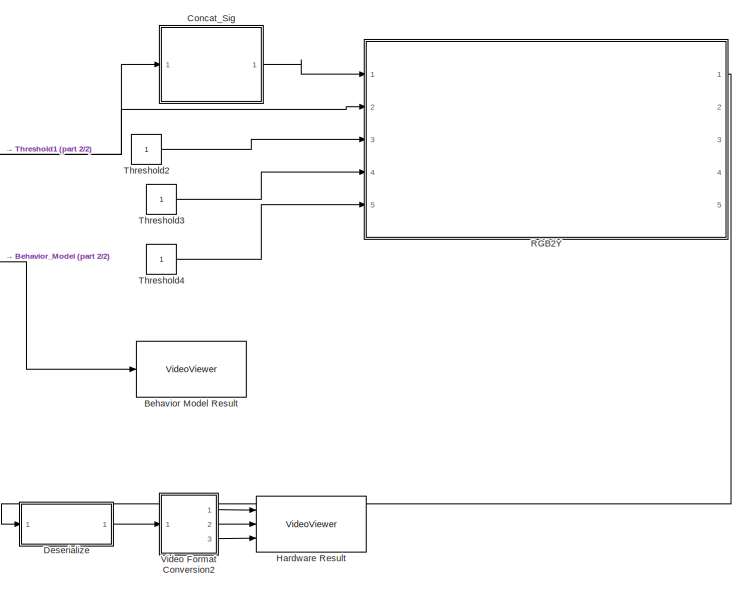
[diagram: root canvas - part 1/2, middle right region]
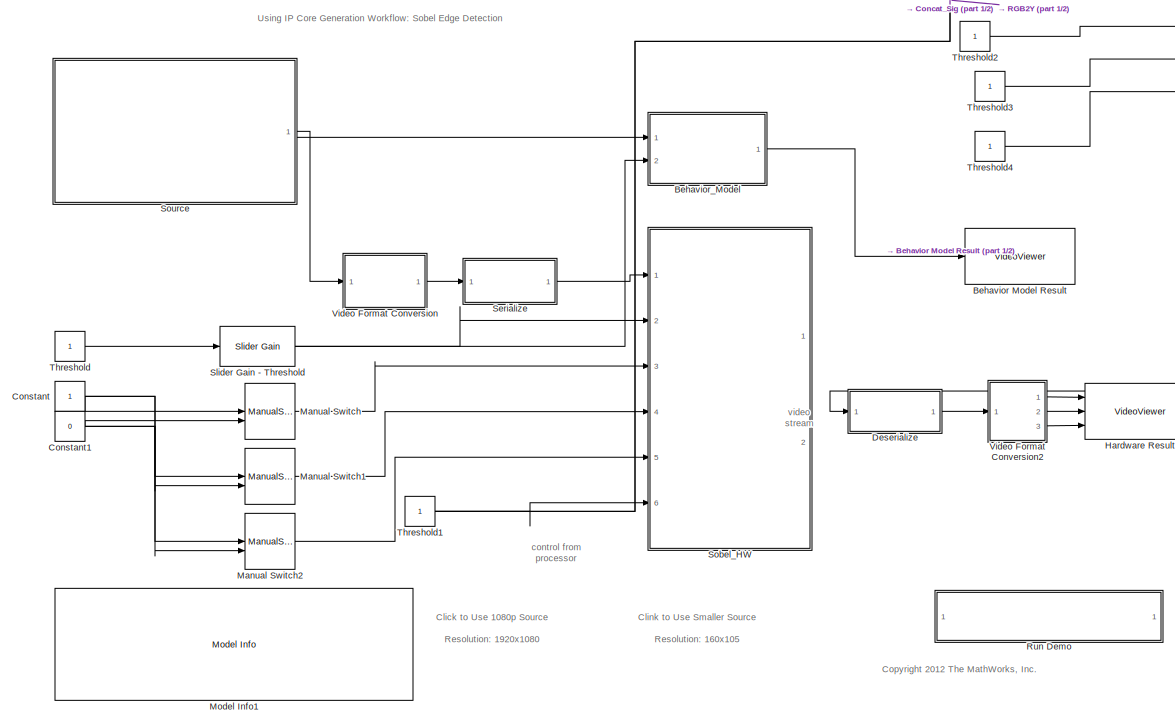
[diagram: root canvas - part 2/2, most of the canvas]
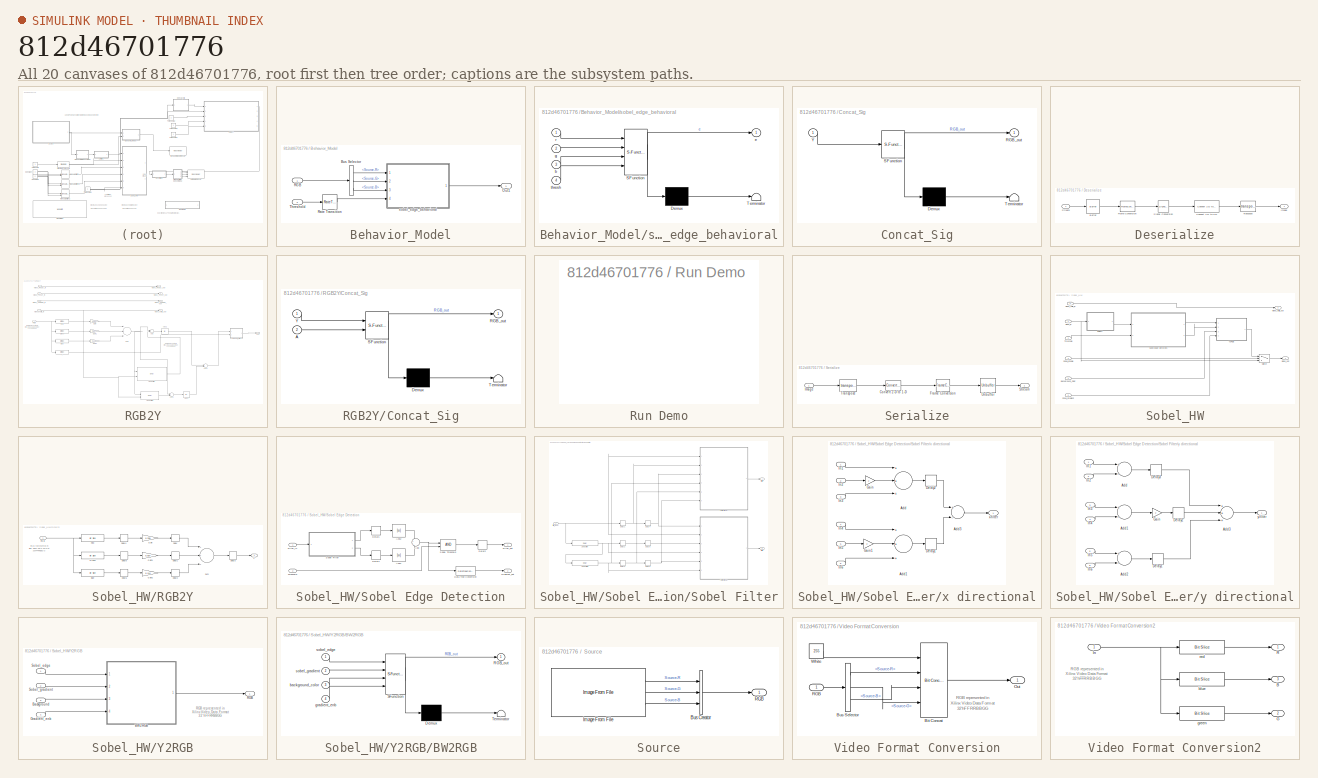
[diagram: thumbnail index - all 20 canvases of the model, root first then tree order]
MODEL slx_812d46701776
KIND model
CONFIG AbsTol = auto
CONFIG FixedStep = auto
CONFIG MaxStep = auto
CONFIG MinStep = auto
CONFIG PreLoadFcn = R=105; \nC=160;\nTs = 1/10;\nimage_sample_time = R*C/10;\n\n
CONFIG RelTol = 1e-3
CONFIG SampleTimeConstraint = Unconstrained
CONFIG Solver = VariableStepAuto
CONFIG SolverMode = Auto
CONFIG SolverName = VariableStepAuto
CONFIG StartTime = 0.0
CONFIG StopTime = 10.0
BLOCK [VideoViewer] Behavior Model Result
  FigPos = [941 500.4 363.2 159.2]
  Ports = [1]
  ScopeSpecificationString = vipscopes.VideoViewerScopeCfg('CurrentConfiguration', extmgr.ConfigurationSet(extmgr.Configuration('Core','General UI',true),extmgr.Configuration('Core','Source UI',true),extmgr.Configuration('Sources','WiredSimulink',true),extmgr.Configuration('Visuals','Video',true,'AxesProperties',struct('Color',[1 1 1],'XColor',[0 0 0],'YColor',[0 0 0],'ZColor',[0 0 0],'XGrid','off','YGrid','off','ZGrid','off'...<+612ch>
  colormapValue = gray(256)
BLOCK [SubSystem] Behavior_Model
  Ports = [2, 1]
  RequestExecContextInheritance = off
  Variant = off
BLOCK [BusSelector] Behavior_Model/Bus Selector
  OutputSignals = Source-R,Source-G,Source-B
  Ports = [1, 3]
BLOCK [Outport] Behavior_Model/Out1
  IconDisplay = Port number
BLOCK [Inport] Behavior_Model/RGB
  IconDisplay = Port number
BLOCK [RateTransition] Behavior_Model/Rate Transition
BLOCK [Inport] Behavior_Model/Threshold
  IconDisplay = Port number
  Port = 2
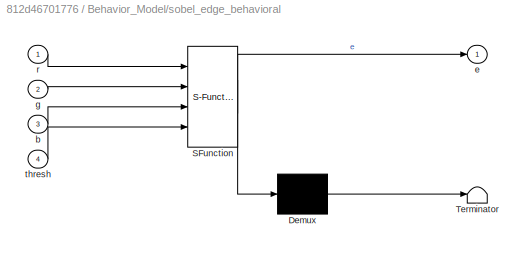
BLOCK [SubSystem] Behavior_Model/sobel_edge_behavioral
  ErrorFcn = Stateflow.Translate.translate
  PermitHierarchicalResolution = ExplicitOnly
  Ports = [4, 1]
  RequestExecContextInheritance = off
  SFBlockType = MATLAB Function
  TreatAsAtomicUnit = on
  Variant = off
BLOCK [Demux] Behavior_Model/sobel_edge_behavioral/ Demux 
  Outputs = 1
  Ports = [1, 1]
BLOCK [S-Function] Behavior_Model/sobel_edge_behavioral/ SFunction 
  EnableBusSupport = on
  FunctionName = sf_sfun
  PortCounts = [4 2]
  Ports = [4, 2]
  SFunctionDeploymentMode = off
  Tag = Stateflow S-Function gm_CSC 2
BLOCK [Terminator] Behavior_Model/sobel_edge_behavioral/ Terminator 
BLOCK [Inport] Behavior_Model/sobel_edge_behavioral/b
  IconDisplay = Port number
  Port = 3
BLOCK [Outport] Behavior_Model/sobel_edge_behavioral/e
  IconDisplay = Port number
BLOCK [Inport] Behavior_Model/sobel_edge_behavioral/g
  IconDisplay = Port number
  Port = 2
BLOCK [Inport] Behavior_Model/sobel_edge_behavioral/r
  IconDisplay = Port number
BLOCK [Inport] Behavior_Model/sobel_edge_behavioral/thresh
  IconDisplay = Port number
  Port = 4
BLOCK [SubSystem] Concat_Sig
  ErrorFcn = Stateflow.Translate.translate
  PermitHierarchicalResolution = ExplicitOnly
  Ports = [1, 1]
  RequestExecContextInheritance = off
  SFBlockType = MATLAB Function
  TreatAsAtomicUnit = on
  Variant = off
BLOCK [Demux] Concat_Sig/ Demux 
  Outputs = 1
  Ports = [1, 1]
BLOCK [S-Function] Concat_Sig/ SFunction 
  EnableBusSupport = on
  FunctionName = sf_sfun
  PortCounts = [1 2]
  Ports = [1, 2]
  SFunctionDeploymentMode = off
  Tag = Stateflow S-Function gm_CSC 4
BLOCK [Terminator] Concat_Sig/ Terminator 
BLOCK [Outport] Concat_Sig/RGB_out
  IconDisplay = Port number
BLOCK [Inport] Concat_Sig/Y
  IconDisplay = Port number
BLOCK [Constant] Constant
  OutDataTypeStr = boolean
  SampleTime = Ts
BLOCK [Constant] Constant1
  OutDataTypeStr = boolean
  SampleTime = Ts
  Value = 0
BLOCK [SubSystem] Deserialize
  Ports = [1, 1]
  RequestExecContextInheritance = off
  Variant = off
BLOCK [Buffer] Deserialize/Buffer
  N = R*C
  TreatMby1Signals = One channel
BLOCK [Reference] Deserialize/Convert 1-D to 2-D  REF=dspsigattribs/Convert 1-D to 2-D
  Ports = [1, 1]
  SourceBlock = dspsigattribs/Convert 1-D to 2-D
  SourceType = Convert 1-D to 2-D
BLOCK [FrameConversion] Deserialize/Frame Conversion
  InheritSamplingMode = off
  OutFrame = Sample-based
  Ports = [1, 1]
BLOCK [Outport] Deserialize/Image
  IconDisplay = Port number
BLOCK [SignalConversion] Deserialize/Signal Conversion
  ConversionOutput = Contiguous copy
  OverrideOpt = off
BLOCK [Inport] Deserialize/Stream
  IconDisplay = Port number
BLOCK [Math] Deserialize/Transpose
  Operator = transpose
  Ports = [1, 1]
BLOCK [VideoViewer] Hardware Result
  FigPos = [1151.4 744.4 360.8 160]
  Ports = [3]
  ScopeSpecificationString = vipscopes.VideoViewerScopeCfg('CurrentConfiguration', extmgr.ConfigurationSet(extmgr.Configuration('Core','General UI',true),extmgr.Configuration('Core','Source UI',true),extmgr.Configuration('Sources','WiredSimulink',true),extmgr.Configuration('Visuals','Video',true,'AxesProperties',struct('Color',[1 1 1],'XColor',[0 0 0],'YColor',[0 0 0],'ZColor',[0 0 0],'XGrid','off','YGrid','off','ZGrid','off'...<+613ch>
  colormapValue = gray(256)
  imagePorts = separate color signals
BLOCK [ManualSwitch] Manual Switch
BLOCK [ManualSwitch] Manual Switch1
BLOCK [ManualSwitch] Manual Switch2
  CurrentSetting = 0
BLOCK [Reference] Model Info1  REF=simulink/Model-Wide
Utilities/Model Info
  Ports = []
  SourceBlock = simulink/Model-Wide\nUtilities/Model Info
  SourceType = CMBlock
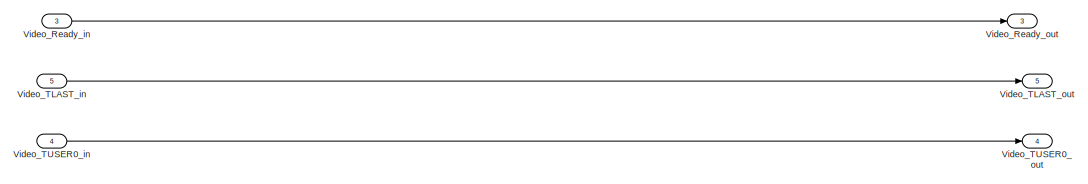
[diagram: RGB2Y - part 1/3, top left region]
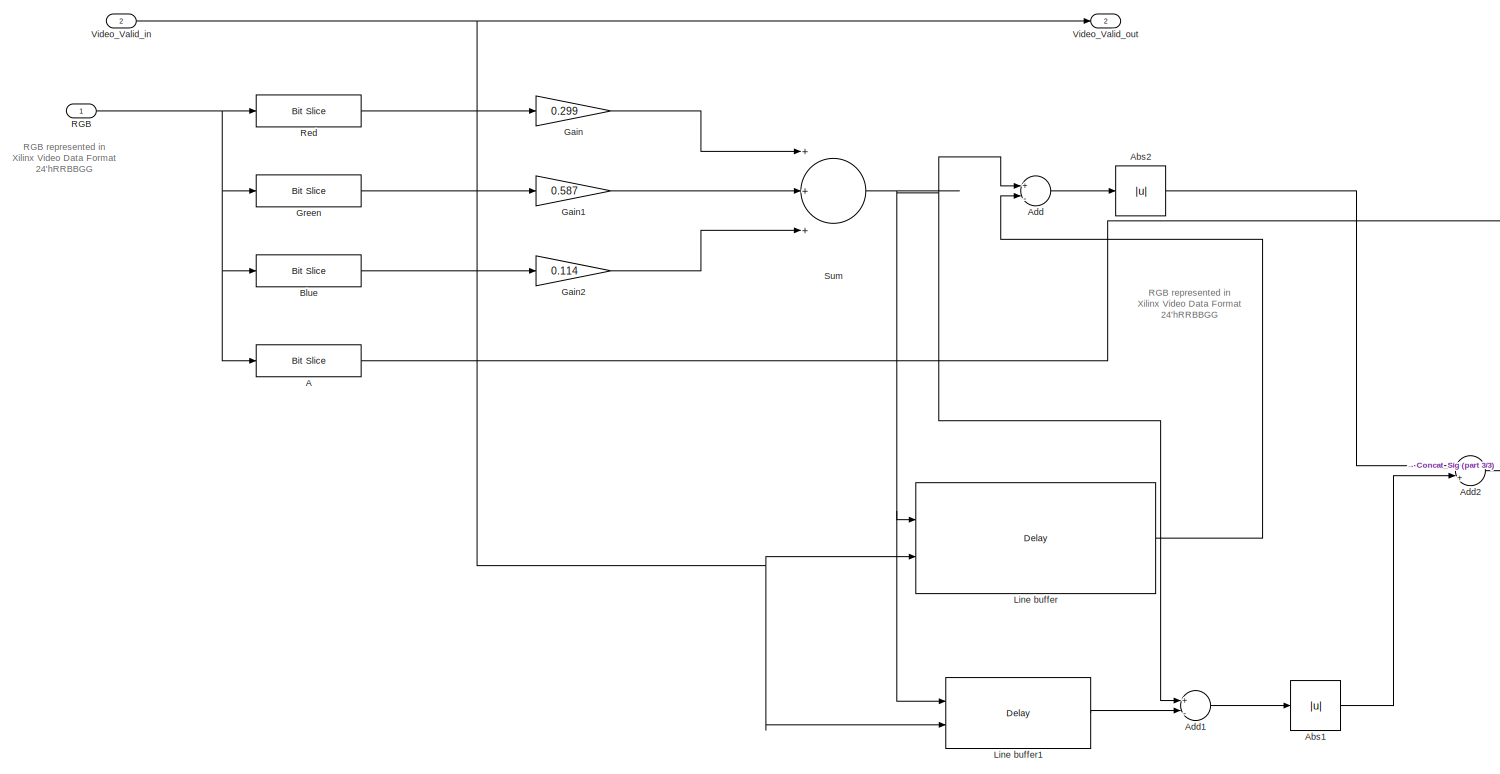
[diagram: RGB2Y - part 2/3, most of the canvas]
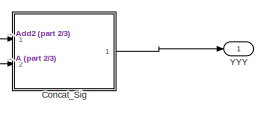
[diagram: RGB2Y - part 3/3, middle right region]
BLOCK [SubSystem] RGB2Y
  Ports = [5, 5]
  RequestExecContextInheritance = off
  TreatAsAtomicUnit = on
  Variant = off
BLOCK [Reference] RGB2Y/A  REF=hdlsllib/HDL Operations/Bit Slice
  Ports = [1, 1]
  SourceBlock = hdlsllib/HDL Operations/Bit Slice
  SourceType = Bit Slice
BLOCK [Abs] RGB2Y/Abs1
  SaturateOnIntegerOverflow = off
BLOCK [Abs] RGB2Y/Abs2
  SaturateOnIntegerOverflow = off
BLOCK [Sum] RGB2Y/Add
  InputSameDT = off
  Inputs = +|-
  OutDataTypeStr = fixdt(1,12,0)
  Ports = [2, 1]
  SaturateOnIntegerOverflow = off
BLOCK [Sum] RGB2Y/Add1
  InputSameDT = off
  Inputs = +|-
  OutDataTypeStr = fixdt(1,12,0)
  Ports = [2, 1]
  SaturateOnIntegerOverflow = off
BLOCK [Sum] RGB2Y/Add2
  InputSameDT = off
  Inputs = +|+
  OutDataTypeStr = fixdt(1,12,0)
  Ports = [2, 1]
  SaturateOnIntegerOverflow = off
BLOCK [Reference] RGB2Y/Blue  REF=hdlsllib/HDL Operations/Bit Slice
  Ports = [1, 1]
  SourceBlock = hdlsllib/HDL Operations/Bit Slice
  SourceType = Bit Slice
BLOCK [SubSystem] RGB2Y/Concat_Sig
  ErrorFcn = Stateflow.Translate.translate
  PermitHierarchicalResolution = ExplicitOnly
  Ports = [2, 1]
  RequestExecContextInheritance = off
  SFBlockType = MATLAB Function
  TreatAsAtomicUnit = on
  Variant = off
BLOCK [Demux] RGB2Y/Concat_Sig/ Demux 
  Outputs = 1
  Ports = [1, 1]
BLOCK [S-Function] RGB2Y/Concat_Sig/ SFunction 
  EnableBusSupport = on
  FunctionName = sf_sfun
  PortCounts = [2 2]
  Ports = [2, 2]
  SFunctionDeploymentMode = off
  Tag = Stateflow S-Function gm_CSC 1
BLOCK [Terminator] RGB2Y/Concat_Sig/ Terminator 
BLOCK [Inport] RGB2Y/Concat_Sig/A
  IconDisplay = Port number
  Port = 2
BLOCK [Outport] RGB2Y/Concat_Sig/RGB_out
  IconDisplay = Port number
BLOCK [Inport] RGB2Y/Concat_Sig/Y
  IconDisplay = Port number
BLOCK [Gain] RGB2Y/Gain
  Gain = 0.299
  ParamDataTypeStr = Inherit: Inherit via internal rule
  SaturateOnIntegerOverflow = off
BLOCK [Gain] RGB2Y/Gain1
  Gain = 0.587
  ParamDataTypeStr = Inherit: Inherit via internal rule
  SaturateOnIntegerOverflow = off
BLOCK [Gain] RGB2Y/Gain2
  Gain = 0.114
  ParamDataTypeStr = Inherit: Inherit via internal rule
  SaturateOnIntegerOverflow = off
BLOCK [Reference] RGB2Y/Green  REF=hdlsllib/HDL Operations/Bit Slice
  Ports = [1, 1]
  SourceBlock = hdlsllib/HDL Operations/Bit Slice
  SourceType = Bit Slice
BLOCK [Delay] RGB2Y/Line buffer
  DelayLength = 640
  InitialCondition = 0
  InputPortMap = u0,e6
  Ports = [2, 1]
  ShowEnablePort = on
BLOCK [Delay] RGB2Y/Line buffer1
  DelayLength = 1
  InitialCondition = 0
  InputPortMap = u0,e6
  Ports = [2, 1]
  ShowEnablePort = on
BLOCK [Inport] RGB2Y/RGB
  IconDisplay = Port number
BLOCK [Reference] RGB2Y/Red  REF=hdlsllib/HDL Operations/Bit Slice
  Ports = [1, 1]
  SourceBlock = hdlsllib/HDL Operations/Bit Slice
  SourceType = Bit Slice
BLOCK [Sum] RGB2Y/Sum
  AccumDataTypeStr = Inherit: Same as first input
  InputSameDT = off
  Inputs = +++
  OutDataTypeStr = fixdt(1, 9, 0)
  Ports = [3, 1]
  SaturateOnIntegerOverflow = off
BLOCK [Inport] RGB2Y/Video_Ready_in
  IconDisplay = Port number
  Port = 3
BLOCK [Outport] RGB2Y/Video_Ready_out
  IconDisplay = Port number
  Port = 3
BLOCK [Inport] RGB2Y/Video_TLAST_in
  IconDisplay = Port number
  Port = 5
BLOCK [Outport] RGB2Y/Video_TLAST_out
  IconDisplay = Port number
  Port = 5
BLOCK [Inport] RGB2Y/Video_TUSER0_in
  IconDisplay = Port number
  Port = 4
BLOCK [Outport] RGB2Y/Video_TUSER0_out
  IconDisplay = Port number
  Port = 4
BLOCK [Inport] RGB2Y/Video_Valid_in
  IconDisplay = Port number
  Port = 2
BLOCK [Outport] RGB2Y/Video_Valid_out
  IconDisplay = Port number
  Port = 2
BLOCK [Outport] RGB2Y/YYY
  IconDisplay = Port number
BLOCK [SubSystem] Run Demo
  OpenFcn = hdladvisor([bdroot, '/Sobel_HW'])
  Ports = []
  RequestExecContextInheritance = off
  Variant = off
BLOCK [SubSystem] Serialize
  Ports = [1, 1]
  RequestExecContextInheritance = off
  Variant = off
BLOCK [Reference] Serialize/Convert 2-D to 1-D  REF=dspsigattribs/Convert 2-D to 1-D
  Ports = [1, 1]
  SourceBlock = dspsigattribs/Convert 2-D to 1-D
  SourceType = Convert 2-D to 1-D
BLOCK [FrameConversion] Serialize/Frame Conversion
  InheritSamplingMode = off
  Ports = [1, 1]
BLOCK [Inport] Serialize/Image
  IconDisplay = Port number
BLOCK [Outport] Serialize/Stream
  IconDisplay = Port number
BLOCK [Math] Serialize/Transpose
  Operator = transpose
  Ports = [1, 1]
BLOCK [Unbuffer] Serialize/Unbuffer
  Ports = [1, 1]
  SampleBasedProcessing = Same as frame based
BLOCK [Reference] Slider Gain - Threshold  REF=simulink/Math
Operations/Slider
Gain
  Ports = [1, 1]
  SourceBlock = simulink/Math\nOperations/Slider\nGain
  SourceType = Slider Gain
BLOCK [SubSystem] Sobel_HW
  Ports = [6, 2]
  RequestExecContextInheritance = off
  TreatAsAtomicUnit = on
  Variant = off
BLOCK [Inport] Sobel_HW/Background_Color
  IconDisplay = Port number
  Port = 4
BLOCK [SubSystem] Sobel_HW/RGB2Y
  Ports = [1, 1]
  RequestExecContextInheritance = off
  Variant = off
BLOCK [Reference] Sobel_HW/RGB2Y/Blue  REF=hdlsllib/HDL Operations/Bit Slice
  Ports = [1, 1]
  SourceBlock = hdlsllib/HDL Operations/Bit Slice
  SourceType = Bit Slice
BLOCK [Delay] Sobel_HW/RGB2Y/Delay
  DelayLength = 1
  InitialCondition = 0
  InputPortMap = u0
  Ports = [1, 1]
BLOCK [Delay] Sobel_HW/RGB2Y/Delay1
  DelayLength = 1
  InitialCondition = 0
  InputPortMap = u0
  Ports = [1, 1]
BLOCK [Delay] Sobel_HW/RGB2Y/Delay2
  DelayLength = 1
  InitialCondition = 0
  InputPortMap = u0
  Ports = [1, 1]
BLOCK [Delay] Sobel_HW/RGB2Y/Delay3
  DelayLength = 1
  InitialCondition = 0
  InputPortMap = u0
  Ports = [1, 1]
BLOCK [Delay] Sobel_HW/RGB2Y/Delay4
  DelayLength = 1
  InitialCondition = 0
  InputPortMap = u0
  Ports = [1, 1]
BLOCK [Delay] Sobel_HW/RGB2Y/Delay5
  DelayLength = 1
  InitialCondition = 0
  InputPortMap = u0
  Ports = [1, 1]
BLOCK [Delay] Sobel_HW/RGB2Y/Delay6
  DelayLength = 1
  InitialCondition = 0
  InputPortMap = u0
  Ports = [1, 1]
BLOCK [Gain] Sobel_HW/RGB2Y/Gain
  Gain = 0.299
  ParamDataTypeStr = Inherit: Inherit via internal rule
  SaturateOnIntegerOverflow = off
BLOCK [Gain] Sobel_HW/RGB2Y/Gain1
  Gain = 0.587
  ParamDataTypeStr = Inherit: Inherit via internal rule
  SaturateOnIntegerOverflow = off
BLOCK [Gain] Sobel_HW/RGB2Y/Gain2
  Gain = 0.114
  ParamDataTypeStr = Inherit: Inherit via internal rule
  SaturateOnIntegerOverflow = off
BLOCK [Reference] Sobel_HW/RGB2Y/Green  REF=hdlsllib/HDL Operations/Bit Slice
  Ports = [1, 1]
  SourceBlock = hdlsllib/HDL Operations/Bit Slice
  SourceType = Bit Slice
BLOCK [Inport] Sobel_HW/RGB2Y/RGB
  IconDisplay = Port number
BLOCK [Reference] Sobel_HW/RGB2Y/Red  REF=hdlsllib/HDL Operations/Bit Slice
  Ports = [1, 1]
  SourceBlock = hdlsllib/HDL Operations/Bit Slice
  SourceType = Bit Slice
BLOCK [Sum] Sobel_HW/RGB2Y/Sum
  AccumDataTypeStr = Inherit: Same as first input
  InputSameDT = off
  Inputs = +++
  OutDataTypeStr = fixdt(1, 9, 0)
  Ports = [3, 1]
  SaturateOnIntegerOverflow = off
BLOCK [Outport] Sobel_HW/RGB2Y/Y
  IconDisplay = Port number
BLOCK [Inport] Sobel_HW/Show_Gradient
  IconDisplay = Port number
  Port = 5
BLOCK [SubSystem] Sobel_HW/Sobel Edge Detection
  Ports = [2, 2]
  RequestExecContextInheritance = off
  Variant = off
BLOCK [Abs] Sobel_HW/Sobel Edge Detection/Abs1
  SaturateOnIntegerOverflow = off
BLOCK [Abs] Sobel_HW/Sobel Edge Detection/Abs2
  SaturateOnIntegerOverflow = off
BLOCK [Sum] Sobel_HW/Sobel Edge Detection/Add
  IconShape = round
  InputSameDT = off
  Inputs = +|+
  OutDataTypeStr = fixdt(1,12,0)
  Ports = [2, 1]
  SaturateOnIntegerOverflow = off
BLOCK [DataTypeConversion] Sobel_HW/Sobel Edge Detection/Data Type Conversion
  OutDataTypeStr = uint8
  RndMeth = Floor
BLOCK [Delay] Sobel_HW/Sobel Edge Detection/Delay1
  DelayLength = 1
  InitialCondition = 0
  InputPortMap = u0
  Ports = [1, 1]
BLOCK [Delay] Sobel_HW/Sobel Edge Detection/Delay2
  DelayLength = 1
  InitialCondition = 0
  InputPortMap = u0
  Ports = [1, 1]
BLOCK [Delay] Sobel_HW/Sobel Edge Detection/Delay4
  DelayLength = 1
  InitialCondition = 0
  InputPortMap = u0
  Ports = [1, 1]
BLOCK [Inport] Sobel_HW/Sobel Edge Detection/Filter_in 
  IconDisplay = Port number and signal name
BLOCK [Outport] Sobel_HW/Sobel Edge Detection/Filter_out
  IconDisplay = Port number
BLOCK [Outport] Sobel_HW/Sobel Edge Detection/Gradient_out
  IconDisplay = Port number
  Port = 2
BLOCK [SubSystem] Sobel_HW/Sobel Edge Detection/Sobel Filter
  Ports = [1, 2]
  RequestExecContextInheritance = off
  Variant = off
BLOCK [Delay] Sobel_HW/Sobel Edge Detection/Sobel Filter/Delay1
  DelayLength = 1
  InitialCondition = 0
  InputPortMap = u0
  Ports = [1, 1]
BLOCK [Delay] Sobel_HW/Sobel Edge Detection/Sobel Filter/Delay2
  DelayLength = 1
  InitialCondition = 0
  InputPortMap = u0
  Ports = [1, 1]
BLOCK [Delay] Sobel_HW/Sobel Edge Detection/Sobel Filter/Delay3
  DelayLength = 1
  InitialCondition = 0
  InputPortMap = u0
  Ports = [1, 1]
BLOCK [Delay] Sobel_HW/Sobel Edge Detection/Sobel Filter/Delay4
  DelayLength = 1
  InitialCondition = 0
  InputPortMap = u0
  Ports = [1, 1]
BLOCK [Delay] Sobel_HW/Sobel Edge Detection/Sobel Filter/Delay5
  DelayLength = 1
  InitialCondition = 0
  InputPortMap = u0
  Ports = [1, 1]
BLOCK [Delay] Sobel_HW/Sobel Edge Detection/Sobel Filter/Delay6
  DelayLength = 1
  InitialCondition = 0
  InputPortMap = u0
  Ports = [1, 1]
BLOCK [Delay] Sobel_HW/Sobel Edge Detection/Sobel Filter/Line buffer
  DelayLength = C
  InitialCondition = 0
  InputPortMap = u0
  Ports = [1, 1]
BLOCK [Delay] Sobel_HW/Sobel Edge Detection/Sobel Filter/Line buffer1
  DelayLength = C
  InitialCondition = 0
  InputPortMap = u0
  Ports = [1, 1]
BLOCK [Inport] Sobel_HW/Sobel Edge Detection/Sobel Filter/filter_input
  IconDisplay = Port number
BLOCK [SubSystem] Sobel_HW/Sobel Edge Detection/Sobel Filter/x directional
  Ports = [6, 1]
  RequestExecContextInheritance = off
  Variant = off
BLOCK [Sum] Sobel_HW/Sobel Edge Detection/Sobel Filter/x directional/Add
  InputSameDT = off
  Inputs = +++
  OutDataTypeStr = fixdt(1,11,0)
  Ports = [3, 1]
  SaturateOnIntegerOverflow = off
BLOCK [Sum] Sobel_HW/Sobel Edge Detection/Sobel Filter/x directional/Add1
  InputSameDT = off
  Inputs = +++
  OutDataTypeStr = fixdt(1,11,0)
  Ports = [3, 1]
  SaturateOnIntegerOverflow = off
BLOCK [Sum] Sobel_HW/Sobel Edge Detection/Sobel Filter/x directional/Add3
  InputSameDT = off
  Inputs = +-
  OutDataTypeStr = Inherit: Inherit via internal rule
  Ports = [2, 1]
  SaturateOnIntegerOverflow = off
BLOCK [Delay] Sobel_HW/Sobel Edge Detection/Sobel Filter/x directional/Delay1
  DelayLength = 1
  InitialCondition = 0
  InputPortMap = u0
  Ports = [1, 1]
BLOCK [Delay] Sobel_HW/Sobel Edge Detection/Sobel Filter/x directional/Delay2
  DelayLength = 1
  InitialCondition = 0
  InputPortMap = u0
  Ports = [1, 1]
BLOCK [Gain] Sobel_HW/Sobel Edge Detection/Sobel Filter/x directional/Gain
  Gain = 2
  OutDataTypeStr = fixdt(1,10,0)
  ParamDataTypeStr = Inherit: Inherit via internal rule
  SaturateOnIntegerOverflow = off
BLOCK [Gain] Sobel_HW/Sobel Edge Detection/Sobel Filter/x directional/Gain1
  Gain = 2
  OutDataTypeStr = fixdt(1,10,0)
  ParamDataTypeStr = sfix(16)
  SaturateOnIntegerOverflow = off
BLOCK [Inport] Sobel_HW/Sobel Edge Detection/Sobel Filter/x directional/In1
  IconDisplay = Port number
BLOCK [Inport] Sobel_HW/Sobel Edge Detection/Sobel Filter/x directional/In2
  IconDisplay = Port number
  Port = 2
BLOCK [Inport] Sobel_HW/Sobel Edge Detection/Sobel Filter/x directional/In3
  IconDisplay = Port number
  Port = 3
BLOCK [Inport] Sobel_HW/Sobel Edge Detection/Sobel Filter/x directional/In4
  IconDisplay = Port number
  Port = 4
BLOCK [Inport] Sobel_HW/Sobel Edge Detection/Sobel Filter/x directional/In5
  IconDisplay = Port number
  Port = 5
BLOCK [Inport] Sobel_HW/Sobel Edge Detection/Sobel Filter/x directional/In6
  IconDisplay = Port number
  Port = 6
BLOCK [Outport] Sobel_HW/Sobel Edge Detection/Sobel Filter/x directional/x-filter
  IconDisplay = Port number
BLOCK [Outport] Sobel_HW/Sobel Edge Detection/Sobel Filter/x-filter
  IconDisplay = Port number
BLOCK [SubSystem] Sobel_HW/Sobel Edge Detection/Sobel Filter/y directional
  Ports = [6, 1]
  RequestExecContextInheritance = off
  Variant = off
BLOCK [Sum] Sobel_HW/Sobel Edge Detection/Sobel Filter/y directional/Add
  InputSameDT = off
  Inputs = +-
  OutDataTypeStr = fixdt(1,11,0)
  Ports = [2, 1]
  SaturateOnIntegerOverflow = off
BLOCK [Sum] Sobel_HW/Sobel Edge Detection/Sobel Filter/y directional/Add1
  InputSameDT = off
  Inputs = +-
  OutDataTypeStr = fixdt(1,11,0)
  Ports = [2, 1]
  SaturateOnIntegerOverflow = off
BLOCK [Sum] Sobel_HW/Sobel Edge Detection/Sobel Filter/y directional/Add2
  InputSameDT = off
  Inputs = +-
  OutDataTypeStr = fixdt(1,11,0)
  Ports = [2, 1]
  SaturateOnIntegerOverflow = off
BLOCK [Sum] Sobel_HW/Sobel Edge Detection/Sobel Filter/y directional/Add3
  InputSameDT = off
  Inputs = +++
  OutDataTypeStr = Inherit: Inherit via internal rule
  Ports = [3, 1]
  SaturateOnIntegerOverflow = off
BLOCK [Delay] Sobel_HW/Sobel Edge Detection/Sobel Filter/y directional/Delay1
  DelayLength = 1
  InitialCondition = 0
  InputPortMap = u0
  Ports = [1, 1]
BLOCK [Delay] Sobel_HW/Sobel Edge Detection/Sobel Filter/y directional/Delay2
  DelayLength = 1
  InitialCondition = 0
  InputPortMap = u0
  Ports = [1, 1]
BLOCK [Delay] Sobel_HW/Sobel Edge Detection/Sobel Filter/y directional/Delay3
  DelayLength = 1
  InitialCondition = 0
  InputPortMap = u0
  Ports = [1, 1]
BLOCK [Gain] Sobel_HW/Sobel Edge Detection/Sobel Filter/y directional/Gain
  Gain = 2
  OutDataTypeStr = fixdt(1,11,0)
  ParamDataTypeStr = Inherit: Inherit via internal rule
  SaturateOnIntegerOverflow = off
BLOCK [Inport] Sobel_HW/Sobel Edge Detection/Sobel Filter/y directional/In1
  IconDisplay = Port number
BLOCK [Inport] Sobel_HW/Sobel Edge Detection/Sobel Filter/y directional/In2
  IconDisplay = Port number
  Port = 2
BLOCK [Inport] Sobel_HW/Sobel Edge Detection/Sobel Filter/y directional/In3
  IconDisplay = Port number
  Port = 3
BLOCK [Inport] Sobel_HW/Sobel Edge Detection/Sobel Filter/y directional/In4
  IconDisplay = Port number
  Port = 4
BLOCK [Inport] Sobel_HW/Sobel Edge Detection/Sobel Filter/y directional/In5
  IconDisplay = Port number
  Port = 5
BLOCK [Inport] Sobel_HW/Sobel Edge Detection/Sobel Filter/y directional/In6
  IconDisplay = Port number
  Port = 6
BLOCK [Outport] Sobel_HW/Sobel Edge Detection/Sobel Filter/y directional/y-filter
  IconDisplay = Port number
BLOCK [Outport] Sobel_HW/Sobel Edge Detection/Sobel Filter/y-filter
  IconDisplay = Port number
  Port = 2
BLOCK [RelationalOperator] Sobel_HW/Sobel Edge Detection/Sobel Threshold
  InputSameDT = off
  OutDataTypeStr = boolean
  Ports = [2, 1]
BLOCK [Inport] Sobel_HW/Sobel Edge Detection/Threshold
  IconDisplay = Port number
  Port = 2
BLOCK [Inport] Sobel_HW/Sobel_Enable
  IconDisplay = Port number
  Port = 3
BLOCK [Switch] Sobel_HW/Switch
  Criteria = u2 ~= 0
  InputSameDT = off
  SaturateOnIntegerOverflow = off
BLOCK [Inport] Sobel_HW/Threshold
  IconDisplay = Port number
  Port = 2
BLOCK [Inport] Sobel_HW/Video_Valid_in
  IconDisplay = Port number
  Port = 6
BLOCK [Outport] Sobel_HW/Video_Valid_out
  IconDisplay = Port number
  Port = 2
BLOCK [Inport] Sobel_HW/Video_in
  IconDisplay = Port number
BLOCK [Outport] Sobel_HW/Video_out
  IconDisplay = Port number
BLOCK [SubSystem] Sobel_HW/Y2RGB
  Ports = [4, 1]
  RequestExecContextInheritance = off
  Variant = off
BLOCK [SubSystem] Sobel_HW/Y2RGB/BW2RGB
  ErrorFcn = Stateflow.Translate.translate
  PermitHierarchicalResolution = ExplicitOnly
  Ports = [4, 1]
  RequestExecContextInheritance = off
  SFBlockType = MATLAB Function
  TreatAsAtomicUnit = on
  Variant = off
BLOCK [Demux] Sobel_HW/Y2RGB/BW2RGB/ Demux 
  Outputs = 1
  Ports = [1, 1]
BLOCK [S-Function] Sobel_HW/Y2RGB/BW2RGB/ SFunction 
  EnableBusSupport = on
  FunctionName = sf_sfun
  PortCounts = [4 2]
  Ports = [4, 2]
  SFunctionDeploymentMode = off
  Tag = Stateflow S-Function gm_CSC 3
BLOCK [Terminator] Sobel_HW/Y2RGB/BW2RGB/ Terminator 
BLOCK [Outport] Sobel_HW/Y2RGB/BW2RGB/RGB_out
  IconDisplay = Port number
BLOCK [Inport] Sobel_HW/Y2RGB/BW2RGB/background_color
  IconDisplay = Port number
  Port = 3
BLOCK [Inport] Sobel_HW/Y2RGB/BW2RGB/gradient_enb
  IconDisplay = Port number
  Port = 4
BLOCK [Inport] Sobel_HW/Y2RGB/BW2RGB/sobel_edge
  IconDisplay = Port number
BLOCK [Inport] Sobel_HW/Y2RGB/BW2RGB/sobel_gradient
  IconDisplay = Port number
  Port = 2
BLOCK [Inport] Sobel_HW/Y2RGB/Background
  IconDisplay = Port number
  Port = 3
BLOCK [Inport] Sobel_HW/Y2RGB/Gradient_enb
  IconDisplay = Port number
  Port = 4
BLOCK [Outport] Sobel_HW/Y2RGB/RGB
  IconDisplay = Port number
BLOCK [Inport] Sobel_HW/Y2RGB/Sobel_edge
  IconDisplay = Port number
BLOCK [Inport] Sobel_HW/Y2RGB/Sobel_gradient
  IconDisplay = Port number
  Port = 2
BLOCK [SubSystem] Source
  Ports = [0, 1]
  RequestExecContextInheritance = off
  Variant = off
BLOCK [BusCreator] Source/Bus Creator
  DisplayOption = bar
  InheritFromInputs = on
  Inputs = 3
  Ports = [3, 1]
BLOCK [Reference] Source/Image From File  REF=visionsources/Image From File
  Ports = [0, 3]
  SourceBlock = visionsources/Image From File
  SourceType = Image From File
  Tag = vipblks_nd
BLOCK [Outport] Source/RGB
  IconDisplay = Port number
BLOCK [Constant] Threshold
  OutDataTypeStr = uint8
  SampleTime = Ts
BLOCK [Constant] Threshold1
  OutDataTypeStr = boolean
  SampleTime = Ts
BLOCK [Constant] Threshold2
  OutDataTypeStr = boolean
  SampleTime = Ts
BLOCK [Constant] Threshold3
  OutDataTypeStr = boolean
  SampleTime = Ts
BLOCK [Constant] Threshold4
  OutDataTypeStr = boolean
  SampleTime = Ts
BLOCK [SubSystem] Video Format Conversion
  Ports = [1, 1]
  RequestExecContextInheritance = off
  Variant = off
BLOCK [Reference] Video Format Conversion/Bit Concat  REF=hdlsllib/HDL Operations/Bit Concat
  Ports = [4, 1]
  SourceBlock = hdlsllib/HDL Operations/Bit Concat
  SourceType = Bit Concat
BLOCK [BusSelector] Video Format Conversion/Bus Selector
  OutputSignals = Source-R,Source-G,Source-B
  Ports = [1, 3]
BLOCK [Outport] Video Format Conversion/Out
  IconDisplay = Port number
BLOCK [Inport] Video Format Conversion/RGB
  IconDisplay = Port number
BLOCK [Constant] Video Format Conversion/White
  OutDataTypeStr = uint8
  SampleTime = image_sample_time
  Value = 255
BLOCK [SubSystem] Video Format Conversion2
  Ports = [1, 3]
  RequestExecContextInheritance = off
  Variant = off
BLOCK [Outport] Video Format Conversion2/B
  IconDisplay = Port number
  Port = 3
BLOCK [Outport] Video Format Conversion2/G
  IconDisplay = Port number
  Port = 2
BLOCK [Inport] Video Format Conversion2/In
  IconDisplay = Port number
BLOCK [Outport] Video Format Conversion2/R
  IconDisplay = Port number
BLOCK [Reference] Video Format Conversion2/blue  REF=hdlsllib/HDL Operations/Bit Slice
  Ports = [1, 1]
  SourceBlock = hdlsllib/HDL Operations/Bit Slice
  SourceType = Bit Slice
BLOCK [Reference] Video Format Conversion2/green  REF=hdlsllib/HDL Operations/Bit Slice
  Ports = [1, 1]
  SourceBlock = hdlsllib/HDL Operations/Bit Slice
  SourceType = Bit Slice
BLOCK [Reference] Video Format Conversion2/red  REF=hdlsllib/HDL Operations/Bit Slice
  Ports = [1, 1]
  SourceBlock = hdlsllib/HDL Operations/Bit Slice
  SourceType = Bit Slice
ANNOTATION (root): Click to Use 1080p Source Resolution: 1920x1080
ANNOTATION (root): Clink to Use Smaller Source Resolution: 160x105
ANNOTATION (root): <copyright redacted>
ANNOTATION (root): Using IP Core Generation Workflow: Sobel Edge Detection
ANNOTATION (root): control from processor
ANNOTATION (root): video stream
ANNOTATION RGB2Y: RGB represented in Xilinx Video Data Format 24'hRRBBGG
ANNOTATION Sobel_HW/RGB2Y: RGB represented in Xilinx Video Data Format 32'hFFRRBBGG
ANNOTATION Sobel_HW/Y2RGB: RGB represented in Xilinx Video Data Format 32'hFFRRBBGG
ANNOTATION Video Format Conversion: RGB represented in Xilinx Video Data Format 32'hFFRRBBGG
ANNOTATION Video Format Conversion2: RGB represented in Xilinx Video Data Format 32'hFFRRBBGG
LINE Behavior_Model/Bus Selector:1 -> Behavior_Model/sobel_edge_behavioral:1
LINE Behavior_Model/Bus Selector:2 -> Behavior_Model/sobel_edge_behavioral:2
LINE Behavior_Model/Bus Selector:3 -> Behavior_Model/sobel_edge_behavioral:3
LINE Behavior_Model/RGB:1 -> Behavior_Model/Bus Selector:1
LINE Behavior_Model/Rate Transition:1 -> Behavior_Model/sobel_edge_behavioral:4
LINE Behavior_Model/Threshold:1 -> Behavior_Model/Rate Transition:1
LINE Behavior_Model/sobel_edge_behavioral:1 -> Behavior_Model/Out1:1
LINE Behavior_Model:1 -> Behavior Model Result:1
LINE Concat_Sig:1 -> RGB2Y:1
NET Constant1:1 -> Manual Switch1:2, Manual Switch2:2, Manual Switch:2
NET Constant:1 -> Manual Switch1:1, Manual Switch2:1, Manual Switch:1
LINE Deserialize/Buffer:1 -> Deserialize/Frame Conversion:1
LINE Deserialize/Convert 1-D to 2-D:1 -> Deserialize/Transpose:1
LINE Deserialize/Frame Conversion:1 -> Deserialize/Signal Conversion:1
LINE Deserialize/Signal Conversion:1 -> Deserialize/Convert 1-D to 2-D:1
LINE Deserialize/Stream:1 -> Deserialize/Buffer:1
LINE Deserialize/Transpose:1 -> Deserialize/Image:1
LINE Deserialize:1 -> Video Format Conversion2:1
LINE Manual Switch1:1 -> Sobel_HW:4
LINE Manual Switch2:1 -> Sobel_HW:5
LINE Manual Switch:1 -> Sobel_HW:3
LINE RGB2Y/A:1 -> RGB2Y/Concat_Sig:2
LINE RGB2Y/Abs1:1 -> RGB2Y/Add2:2
LINE RGB2Y/Abs2:1 -> RGB2Y/Add2:1
LINE RGB2Y/Add1:1 -> RGB2Y/Abs1:1
LINE RGB2Y/Add2:1 -> RGB2Y/Concat_Sig:1
LINE RGB2Y/Add:1 -> RGB2Y/Abs2:1
LINE RGB2Y/Blue:1 -> RGB2Y/Gain2:1
LINE RGB2Y/Concat_Sig:1 -> RGB2Y/YYY:1
LINE RGB2Y/Gain1:1 -> RGB2Y/Sum:2
LINE RGB2Y/Gain2:1 -> RGB2Y/Sum:3
LINE RGB2Y/Gain:1 -> RGB2Y/Sum:1
LINE RGB2Y/Green:1 -> RGB2Y/Gain1:1
LINE RGB2Y/Line buffer1:1 -> RGB2Y/Add1:2
LINE RGB2Y/Line buffer:1 -> RGB2Y/Add:2
NET RGB2Y/RGB:1 -> RGB2Y/A:1, RGB2Y/Blue:1, RGB2Y/Green:1, RGB2Y/Red:1
LINE RGB2Y/Red:1 -> RGB2Y/Gain:1
NET RGB2Y/Sum:1 -> RGB2Y/Add1:1, RGB2Y/Add:1, RGB2Y/Line buffer1:1, RGB2Y/Line buffer:1
LINE RGB2Y/Video_Ready_in:1 -> RGB2Y/Video_Ready_out:1
LINE RGB2Y/Video_TLAST_in:1 -> RGB2Y/Video_TLAST_out:1
LINE RGB2Y/Video_TUSER0_in:1 -> RGB2Y/Video_TUSER0_out:1
NET RGB2Y/Video_Valid_in:1 -> RGB2Y/Line buffer1:2, RGB2Y/Line buffer:2, RGB2Y/Video_Valid_out:1
LINE RGB2Y:1 -> Deserialize:1
LINE Serialize/Convert 2-D to 1-D:1 -> Serialize/Frame Conversion:1
LINE Serialize/Frame Conversion:1 -> Serialize/Unbuffer:1
LINE Serialize/Image:1 -> Serialize/Transpose:1
LINE Serialize/Transpose:1 -> Serialize/Convert 2-D to 1-D:1
LINE Serialize/Unbuffer:1 -> Serialize/Stream:1
LINE Serialize:1 -> Sobel_HW:1
NET Slider Gain - Threshold:1 -> Behavior_Model:2, Sobel_HW:2
LINE Sobel_HW/Background_Color:1 -> Sobel_HW/Y2RGB:3
LINE Sobel_HW/RGB2Y/Blue:1 -> Sobel_HW/RGB2Y/Delay6:1
LINE Sobel_HW/RGB2Y/Delay1:1 -> Sobel_HW/RGB2Y/Sum:2
LINE Sobel_HW/RGB2Y/Delay2:1 -> Sobel_HW/RGB2Y/Sum:3
LINE Sobel_HW/RGB2Y/Delay3:1 -> Sobel_HW/RGB2Y/Y:1
LINE Sobel_HW/RGB2Y/Delay4:1 -> Sobel_HW/RGB2Y/Gain:1
LINE Sobel_HW/RGB2Y/Delay5:1 -> Sobel_HW/RGB2Y/Gain1:1
LINE Sobel_HW/RGB2Y/Delay6:1 -> Sobel_HW/RGB2Y/Gain2:1
LINE Sobel_HW/RGB2Y/Delay:1 -> Sobel_HW/RGB2Y/Sum:1
LINE Sobel_HW/RGB2Y/Gain1:1 -> Sobel_HW/RGB2Y/Delay1:1
LINE Sobel_HW/RGB2Y/Gain2:1 -> Sobel_HW/RGB2Y/Delay2:1
LINE Sobel_HW/RGB2Y/Gain:1 -> Sobel_HW/RGB2Y/Delay:1
LINE Sobel_HW/RGB2Y/Green:1 -> Sobel_HW/RGB2Y/Delay5:1
NET Sobel_HW/RGB2Y/RGB:1 -> Sobel_HW/RGB2Y/Blue:1, Sobel_HW/RGB2Y/Green:1, Sobel_HW/RGB2Y/Red:1
LINE Sobel_HW/RGB2Y/Red:1 -> Sobel_HW/RGB2Y/Delay4:1
LINE Sobel_HW/RGB2Y/Sum:1 -> Sobel_HW/RGB2Y/Delay3:1
LINE Sobel_HW/RGB2Y:1 -> Sobel_HW/Sobel Edge Detection:1
LINE Sobel_HW/Show_Gradient:1 -> Sobel_HW/Y2RGB:4
LINE Sobel_HW/Sobel Edge Detection/Abs1:1 -> Sobel_HW/Sobel Edge Detection/Add:2
LINE Sobel_HW/Sobel Edge Detection/Abs2:1 -> Sobel_HW/Sobel Edge Detection/Add:1
NET Sobel_HW/Sobel Edge Detection/Add:1 -> Sobel_HW/Sobel Edge Detection/Data Type Conversion:1, Sobel_HW/Sobel Edge Detection/Sobel Threshold:1
LINE Sobel_HW/Sobel Edge Detection/Data Type Conversion:1 -> Sobel_HW/Sobel Edge Detection/Gradient_out:1
LINE Sobel_HW/Sobel Edge Detection/Delay1:1 -> Sobel_HW/Sobel Edge Detection/Abs2:1
LINE Sobel_HW/Sobel Edge Detection/Delay2:1 -> Sobel_HW/Sobel Edge Detection/Filter_out:1
LINE Sobel_HW/Sobel Edge Detection/Delay4:1 -> Sobel_HW/Sobel Edge Detection/Abs1:1
LINE Sobel_HW/Sobel Edge Detection/Filter_in :1 -> Sobel_HW/Sobel Edge Detection/Sobel Filter:1
NET Sobel_HW/Sobel Edge Detection/Sobel Filter/Delay1:1 -> Sobel_HW/Sobel Edge Detection/Sobel Filter/Delay4:1, Sobel_HW/Sobel Edge Detection/Sobel Filter/x directional:2
LINE Sobel_HW/Sobel Edge Detection/Sobel Filter/Delay2:1 -> Sobel_HW/Sobel Edge Detection/Sobel Filter/Delay5:1
NET Sobel_HW/Sobel Edge Detection/Sobel Filter/Delay3:1 -> Sobel_HW/Sobel Edge Detection/Sobel Filter/Delay6:1, Sobel_HW/Sobel Edge Detection/Sobel Filter/x directional:5
NET Sobel_HW/Sobel Edge Detection/Sobel Filter/Delay4:1 -> Sobel_HW/Sobel Edge Detection/Sobel Filter/x directional:3, Sobel_HW/Sobel Edge Detection/Sobel Filter/y directional:1
LINE Sobel_HW/Sobel Edge Detection/Sobel Filter/Delay5:1 -> Sobel_HW/Sobel Edge Detection/Sobel Filter/y directional:3
NET Sobel_HW/Sobel Edge Detection/Sobel Filter/Delay6:1 -> Sobel_HW/Sobel Edge Detection/Sobel Filter/x directional:6, Sobel_HW/Sobel Edge Detection/Sobel Filter/y directional:5
NET Sobel_HW/Sobel Edge Detection/Sobel Filter/Line buffer1:1 -> Sobel_HW/Sobel Edge Detection/Sobel Filter/Delay3:1, Sobel_HW/Sobel Edge Detection/Sobel Filter/x directional:4, Sobel_HW/Sobel Edge Detection/Sobel Filter/y directional:6
NET Sobel_HW/Sobel Edge Detection/Sobel Filter/Line buffer:1 -> Sobel_HW/Sobel Edge Detection/Sobel Filter/Delay2:1, Sobel_HW/Sobel Edge Detection/Sobel Filter/Line buffer1:1, Sobel_HW/Sobel Edge Detection/Sobel Filter/y directional:4
NET Sobel_HW/Sobel Edge Detection/Sobel Filter/filter_input:1 -> Sobel_HW/Sobel Edge Detection/Sobel Filter/Delay1:1, Sobel_HW/Sobel Edge Detection/Sobel Filter/Line buffer:1, Sobel_HW/Sobel Edge Detection/Sobel Filter/x directional:1, Sobel_HW/Sobel Edge Detection/Sobel Filter/y directional:2
LINE Sobel_HW/Sobel Edge Detection/Sobel Filter/x directional/Add1:1 -> Sobel_HW/Sobel Edge Detection/Sobel Filter/x directional/Delay1:1
LINE Sobel_HW/Sobel Edge Detection/Sobel Filter/x directional/Add3:1 -> Sobel_HW/Sobel Edge Detection/Sobel Filter/x directional/x-filter:1
LINE Sobel_HW/Sobel Edge Detection/Sobel Filter/x directional/Add:1 -> Sobel_HW/Sobel Edge Detection/Sobel Filter/x directional/Delay2:1
LINE Sobel_HW/Sobel Edge Detection/Sobel Filter/x directional/Delay1:1 -> Sobel_HW/Sobel Edge Detection/Sobel Filter/x directional/Add3:2
LINE Sobel_HW/Sobel Edge Detection/Sobel Filter/x directional/Delay2:1 -> Sobel_HW/Sobel Edge Detection/Sobel Filter/x directional/Add3:1
LINE Sobel_HW/Sobel Edge Detection/Sobel Filter/x directional/Gain1:1 -> Sobel_HW/Sobel Edge Detection/Sobel Filter/x directional/Add1:2
LINE Sobel_HW/Sobel Edge Detection/Sobel Filter/x directional/Gain:1 -> Sobel_HW/Sobel Edge Detection/Sobel Filter/x directional/Add:2
LINE Sobel_HW/Sobel Edge Detection/Sobel Filter/x directional/In1:1 -> Sobel_HW/Sobel Edge Detection/Sobel Filter/x directional/Add:1
LINE Sobel_HW/Sobel Edge Detection/Sobel Filter/x directional/In2:1 -> Sobel_HW/Sobel Edge Detection/Sobel Filter/x directional/Gain:1
LINE Sobel_HW/Sobel Edge Detection/Sobel Filter/x directional/In3:1 -> Sobel_HW/Sobel Edge Detection/Sobel Filter/x directional/Add:3
LINE Sobel_HW/Sobel Edge Detection/Sobel Filter/x directional/In4:1 -> Sobel_HW/Sobel Edge Detection/Sobel Filter/x directional/Add1:1
LINE Sobel_HW/Sobel Edge Detection/Sobel Filter/x directional/In5:1 -> Sobel_HW/Sobel Edge Detection/Sobel Filter/x directional/Gain1:1
LINE Sobel_HW/Sobel Edge Detection/Sobel Filter/x directional/In6:1 -> Sobel_HW/Sobel Edge Detection/Sobel Filter/x directional/Add1:3
LINE Sobel_HW/Sobel Edge Detection/Sobel Filter/x directional:1 -> Sobel_HW/Sobel Edge Detection/Sobel Filter/x-filter:1
LINE Sobel_HW/Sobel Edge Detection/Sobel Filter/y directional/Add1:1 -> Sobel_HW/Sobel Edge Detection/Sobel Filter/y directional/Gain:1
LINE Sobel_HW/Sobel Edge Detection/Sobel Filter/y directional/Add2:1 -> Sobel_HW/Sobel Edge Detection/Sobel Filter/y directional/Delay1:1
LINE Sobel_HW/Sobel Edge Detection/Sobel Filter/y directional/Add3:1 -> Sobel_HW/Sobel Edge Detection/Sobel Filter/y directional/y-filter:1
LINE Sobel_HW/Sobel Edge Detection/Sobel Filter/y directional/Add:1 -> Sobel_HW/Sobel Edge Detection/Sobel Filter/y directional/Delay3:1
LINE Sobel_HW/Sobel Edge Detection/Sobel Filter/y directional/Delay1:1 -> Sobel_HW/Sobel Edge Detection/Sobel Filter/y directional/Add3:3
LINE Sobel_HW/Sobel Edge Detection/Sobel Filter/y directional/Delay2:1 -> Sobel_HW/Sobel Edge Detection/Sobel Filter/y directional/Add3:2
LINE Sobel_HW/Sobel Edge Detection/Sobel Filter/y directional/Delay3:1 -> Sobel_HW/Sobel Edge Detection/Sobel Filter/y directional/Add3:1
LINE Sobel_HW/Sobel Edge Detection/Sobel Filter/y directional/Gain:1 -> Sobel_HW/Sobel Edge Detection/Sobel Filter/y directional/Delay2:1
LINE Sobel_HW/Sobel Edge Detection/Sobel Filter/y directional/In1:1 -> Sobel_HW/Sobel Edge Detection/Sobel Filter/y directional/Add:1
LINE Sobel_HW/Sobel Edge Detection/Sobel Filter/y directional/In2:1 -> Sobel_HW/Sobel Edge Detection/Sobel Filter/y directional/Add:2
LINE Sobel_HW/Sobel Edge Detection/Sobel Filter/y directional/In3:1 -> Sobel_HW/Sobel Edge Detection/Sobel Filter/y directional/Add1:1
LINE Sobel_HW/Sobel Edge Detection/Sobel Filter/y directional/In4:1 -> Sobel_HW/Sobel Edge Detection/Sobel Filter/y directional/Add1:2
LINE Sobel_HW/Sobel Edge Detection/Sobel Filter/y directional/In5:1 -> Sobel_HW/Sobel Edge Detection/Sobel Filter/y directional/Add2:1
LINE Sobel_HW/Sobel Edge Detection/Sobel Filter/y directional/In6:1 -> Sobel_HW/Sobel Edge Detection/Sobel Filter/y directional/Add2:2
LINE Sobel_HW/Sobel Edge Detection/Sobel Filter/y directional:1 -> Sobel_HW/Sobel Edge Detection/Sobel Filter/y-filter:1
LINE Sobel_HW/Sobel Edge Detection/Sobel Filter:1 -> Sobel_HW/Sobel Edge Detection/Delay1:1
LINE Sobel_HW/Sobel Edge Detection/Sobel Filter:2 -> Sobel_HW/Sobel Edge Detection/Delay4:1
LINE Sobel_HW/Sobel Edge Detection/Sobel Threshold:1 -> Sobel_HW/Sobel Edge Detection/Delay2:1
LINE Sobel_HW/Sobel Edge Detection/Threshold:1 -> Sobel_HW/Sobel Edge Detection/Sobel Threshold:2
LINE Sobel_HW/Sobel Edge Detection:1 -> Sobel_HW/Y2RGB:1
LINE Sobel_HW/Sobel Edge Detection:2 -> Sobel_HW/Y2RGB:2
LINE Sobel_HW/Sobel_Enable:1 -> Sobel_HW/Switch:2
LINE Sobel_HW/Switch:1 -> Sobel_HW/Video_out:1
LINE Sobel_HW/Threshold:1 -> Sobel_HW/Sobel Edge Detection:2
LINE Sobel_HW/Video_Valid_in:1 -> Sobel_HW/Video_Valid_out:1
NET Sobel_HW/Video_in:1 -> Sobel_HW/RGB2Y:1, Sobel_HW/Switch:3
LINE Sobel_HW/Y2RGB/BW2RGB:1 -> Sobel_HW/Y2RGB/RGB:1
LINE Sobel_HW/Y2RGB/Background:1 -> Sobel_HW/Y2RGB/BW2RGB:3
LINE Sobel_HW/Y2RGB/Gradient_enb:1 -> Sobel_HW/Y2RGB/BW2RGB:4
LINE Sobel_HW/Y2RGB/Sobel_edge:1 -> Sobel_HW/Y2RGB/BW2RGB:1
LINE Sobel_HW/Y2RGB/Sobel_gradient:1 -> Sobel_HW/Y2RGB/BW2RGB:2
LINE Sobel_HW/Y2RGB:1 -> Sobel_HW/Switch:1
LINE Source/Bus Creator:1 -> Source/RGB:1
LINE Source/Image From File:1 -> Source/Bus Creator:1
LINE Source/Image From File:2 -> Source/Bus Creator:2
LINE Source/Image From File:3 -> Source/Bus Creator:3
NET Source:1 -> Behavior_Model:1, Video Format Conversion:1
NET Threshold1:1 -> Concat_Sig:1, RGB2Y:2, Sobel_HW:6
LINE Threshold2:1 -> RGB2Y:3
LINE Threshold3:1 -> RGB2Y:4
LINE Threshold4:1 -> RGB2Y:5
LINE Threshold:1 -> Slider Gain - Threshold:1
LINE Video Format Conversion/Bit Concat:1 -> Video Format Conversion/Out:1
LINE Video Format Conversion/Bus Selector:1 -> Video Format Conversion/Bit Concat:2
LINE Video Format Conversion/Bus Selector:2 -> Video Format Conversion/Bit Concat:4
LINE Video Format Conversion/Bus Selector:3 -> Video Format Conversion/Bit Concat:3
LINE Video Format Conversion/RGB:1 -> Video Format Conversion/Bus Selector:1
LINE Video Format Conversion/White:1 -> Video Format Conversion/Bit Concat:1
NET Video Format Conversion2/In:1 -> Video Format Conversion2/blue:1, Video Format Conversion2/green:1, Video Format Conversion2/red:1
LINE Video Format Conversion2/blue:1 -> Video Format Conversion2/B:1
LINE Video Format Conversion2/green:1 -> Video Format Conversion2/G:1
LINE Video Format Conversion2/red:1 -> Video Format Conversion2/R:1
LINE Video Format Conversion2:1 -> Hardware Result:1
LINE Video Format Conversion2:2 -> Hardware Result:2
LINE Video Format Conversion2:3 -> Hardware Result:3
LINE Video Format Conversion:1 -> Serialize:1
note: NET lines group one-source signal fan-out (src -> all destinations, sorted); 1:1 wires keep LINE
CHART RGB2Y/Concat_Sig states=1 transitions=1
  STATE_LABEL 'eML_blk_kernel()'
  STATE_LABEL "SCRIPT:\nfunction RGB_out = Concat_Sig(Y,A)\n% 32'hAARRBBGG\n\nRd = fi(Y, 0, 8, 0);\nGr = fi(Y, 0, 8, 0);\nBl = fi(Y, 0, 8, 0);\nAA = fi(A, 0, 8, 0);\nRGB_out = bitconcat(AA,Rd,Gr,Bl);\n"
CHART Behavior_Model/sobel_edge_behavioral states=1 transitions=1
  STATE_LABEL 'eML_blk_kernel()'
  STATE_LABEL 'SCRIPT:\nfunction e = fcn(r, g, b, thresh)\n% SOBEL EDGE DETECTION\n%\n% Edges characterize boundaries and are therefore a problem of fundamental \n% importance in image processing. Edges in images are areas with strong \n% intensity contrasts. Edge detecting an image significantly \n% reduces the amount of data and filters out useless information, \n% while preserving the important structural properties ...<+1582ch>'
CHART Sobel_HW/Y2RGB/BW2RGB states=1 transitions=1
  STATE_LABEL 'eML_blk_kernel()'
  STATE_LABEL "SCRIPT:\nfunction RGB_out = BW2RGB(sobel_edge, sobel_gradient, background_color, gradient_enb)\n% DisplaRGB_out sobel output (black or white) in RGB format.\n% RGB is represented in Xilinx Video Data Format Representation\n% 32'hFFRRBBGG\n\nblack = fi(0, 0, 8, 0);\nwhite = fi(255, 0, 8, 0);\nRGB_white = bitconcat(white, white, white, white);\nRGB_black = bitconcat(white, black, black, black);\n\n% RGB format...<+526ch>"
CHART Concat_Sig states=1 transitions=1
  STATE_LABEL 'eML_blk_kernel()'
  STATE_LABEL "SCRIPT:\nfunction RGB_out = Concat_Sig_Out(Y)\n% 32'hAARRBBGG\n\nAa = fi(0, 0, 8, 0);\nRd = fi(0, 0, 8, 0);\nGr = fi(0, 0, 8, 0);\nBl = fi(0, 0, 8, 0);\n\nRGB_out = bitconcat(Aa,Rd,Gr,Bl);\n"
